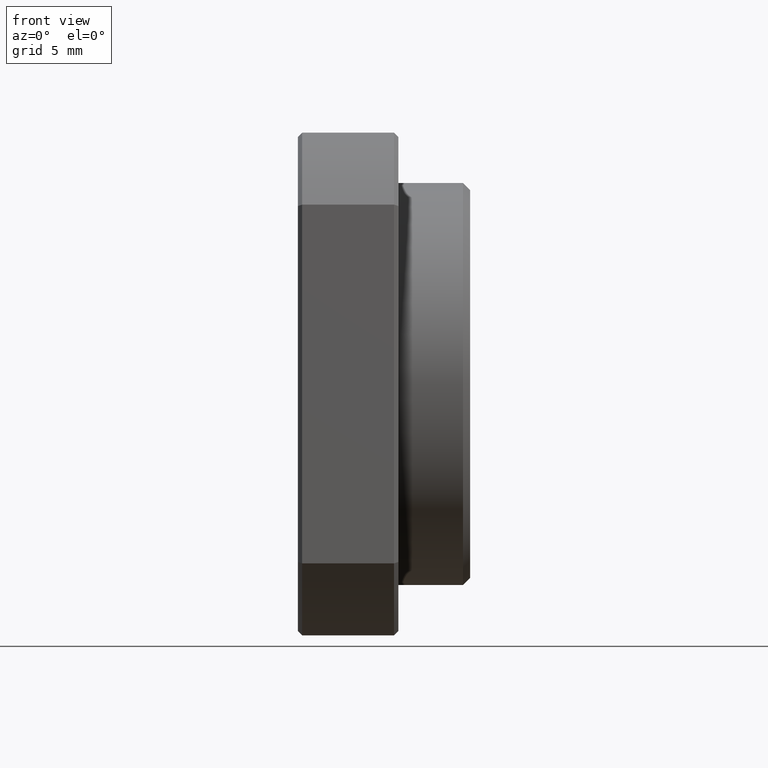
[diagram: clean part render]
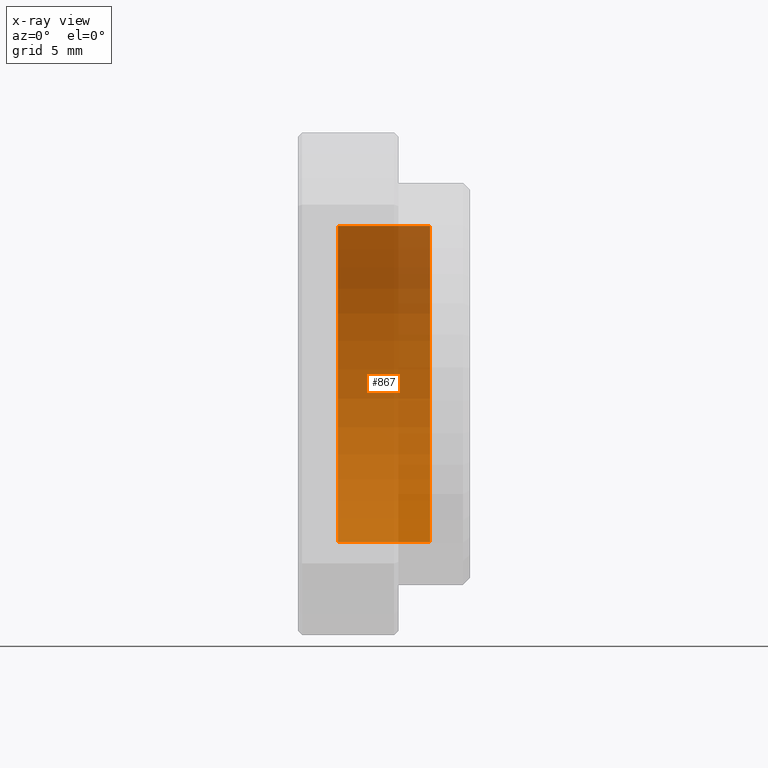
[diagram: x-ray — body ghosted, one internal face saturated and labeled with its STEP entity id]
A machine part, front view, then the same camera in x-ray: the body is ghosted and one INTERNAL B-rep face — a face not visible from any outside direction — is saturated and labeled: STEP entity #867.
In plain terms, the highlighted cylindrical surface (partial cylindrical patch) has radius 11 mm, axis along (-1, -0, -0).
Its self-contained STEP definition (entity closure, byte-faithful):
#661 = VERTEX_POINT ( 'NONE', #1699 ) ;
#756 = ORIENTED_EDGE ( 'NONE', *, *, #763, .T. ) ;
#757 = ORIENTED_EDGE ( 'NONE', *, *, #758, .F. ) ;
#758 = EDGE_CURVE ( 'NONE', #864, #887, #1900, .T. ) ;
#763 = EDGE_CURVE ( 'NONE', #875, #887, #1941, .T. ) ;
#863 = EDGE_CURVE ( 'NONE', #864, #661, #1857, .T. ) ;
#864 = VERTEX_POINT ( 'NONE', #1848 ) ;
#867 = ADVANCED_FACE ( 'NONE', ( #1842 ), #1841, .T. ) ;
#868 = EDGE_LOOP ( 'NONE', ( #869, #870, #756, #757 ) ) ;
#869 = ORIENTED_EDGE ( 'NONE', *, *, #863, .T. ) ;
#870 = ORIENTED_EDGE ( 'NONE', *, *, #871, .T. ) ;
#871 = EDGE_CURVE ( 'NONE', #661, #875, #1898, .T. ) ;
#875 = VERTEX_POINT ( 'NONE', #1894 ) ;
#887 = VERTEX_POINT ( 'NONE', #1870 ) ;
#1699 = CARTESIAN_POINT ( 'NONE',  ( 9.199999999999994000, 1.347066989204615000E-015, -11.00000000000000000 ) ) ;
#1837 = DIRECTION ( 'NONE',  ( 0.0000000000000000000, 0.0000000000000000000, 1.000000000000000000 ) ) ;
#1838 = DIRECTION ( 'NONE',  ( -1.000000000000000000, -0.0000000000000000000, -0.0000000000000000000 ) ) ;
#1839 = CARTESIAN_POINT ( 'NONE',  ( -13.58001605136436600, 0.0000000000000000000, 0.0000000000000000000 ) ) ;
#1840 = AXIS2_PLACEMENT_3D ( 'NONE', #1839, #1838, #1837 ) ;
#1841 = CYLINDRICAL_SURFACE ( 'NONE', #1840, 11.00000000000000000 ) ;
#1842 = FACE_OUTER_BOUND ( 'NONE', #868, .T. ) ;
#1848 = CARTESIAN_POINT ( 'NONE',  ( 9.199999999999994000, 0.0000000000000000000, 11.00000000000000000 ) ) ;
#1849 = DIRECTION ( 'NONE',  ( 0.0000000000000000000, 0.0000000000000000000, 1.000000000000000000 ) ) ;
#1850 = DIRECTION ( 'NONE',  ( -1.000000000000000000, -0.0000000000000000000, -0.0000000000000000000 ) ) ;
#1851 = CARTESIAN_POINT ( 'NONE',  ( 9.199999999999994000, 0.0000000000000000000, 0.0000000000000000000 ) ) ;
#1852 = AXIS2_PLACEMENT_3D ( 'NONE', #1851, #1850, #1849 ) ;
#1857 = CIRCLE ( 'NONE', #1852, 11.00000000000000000 ) ;
#1870 = CARTESIAN_POINT ( 'NONE',  ( 2.799999999999998500, 0.0000000000000000000, 11.00000000000000000 ) ) ;
#1894 = CARTESIAN_POINT ( 'NONE',  ( 2.799999999999998500, 1.347066989204615000E-015, -11.00000000000000000 ) ) ;
#1895 = DIRECTION ( 'NONE',  ( -1.000000000000000000, -0.0000000000000000000, -0.0000000000000000000 ) ) ;
#1896 = VECTOR ( 'NONE', #1895, 1000.000000000000000 ) ;
#1897 = CARTESIAN_POINT ( 'NONE',  ( -13.58001605136436600, 1.347066989204615000E-015, -11.00000000000000000 ) ) ;
#1898 = LINE ( 'NONE', #1897, #1896 ) ;
#1899 = CARTESIAN_POINT ( 'NONE',  ( -13.58001605136436600, 0.0000000000000000000, 11.00000000000000000 ) ) ;
#1900 = LINE ( 'NONE', #1899, #1953 ) ;
#1937 = DIRECTION ( 'NONE',  ( 0.0000000000000000000, 0.0000000000000000000, -1.000000000000000000 ) ) ;
#1938 = DIRECTION ( 'NONE',  ( 1.000000000000000000, 0.0000000000000000000, 0.0000000000000000000 ) ) ;
#1939 = CARTESIAN_POINT ( 'NONE',  ( 2.799999999999998500, 0.0000000000000000000, 0.0000000000000000000 ) ) ;
#1940 = AXIS2_PLACEMENT_3D ( 'NONE', #1939, #1938, #1937 ) ;
#1941 = CIRCLE ( 'NONE', #1940, 11.00000000000000000 ) ;
#1952 = DIRECTION ( 'NONE',  ( -1.000000000000000000, -0.0000000000000000000, -0.0000000000000000000 ) ) ;
#1953 = VECTOR ( 'NONE', #1952, 1000.000000000000000 ) ;